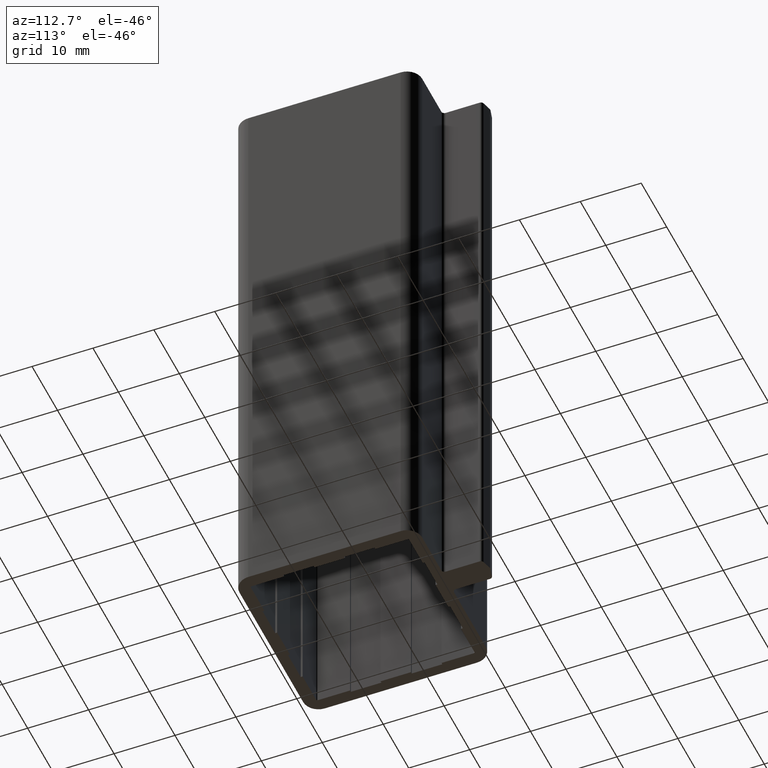
[diagram: clean part render]
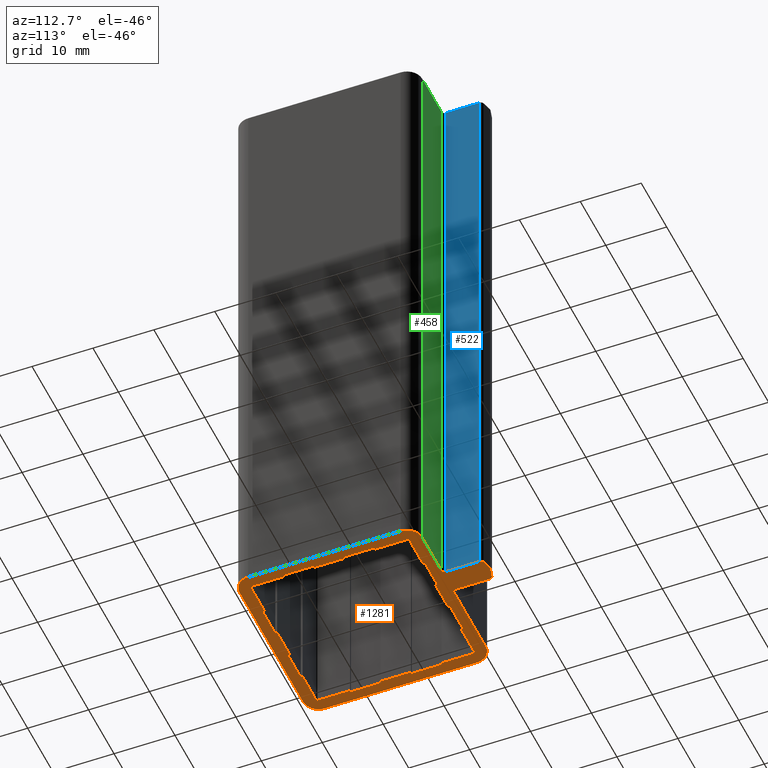
[diagram: same view with three faces highlighted in distinct colors, each labeled with its STEP entity id]
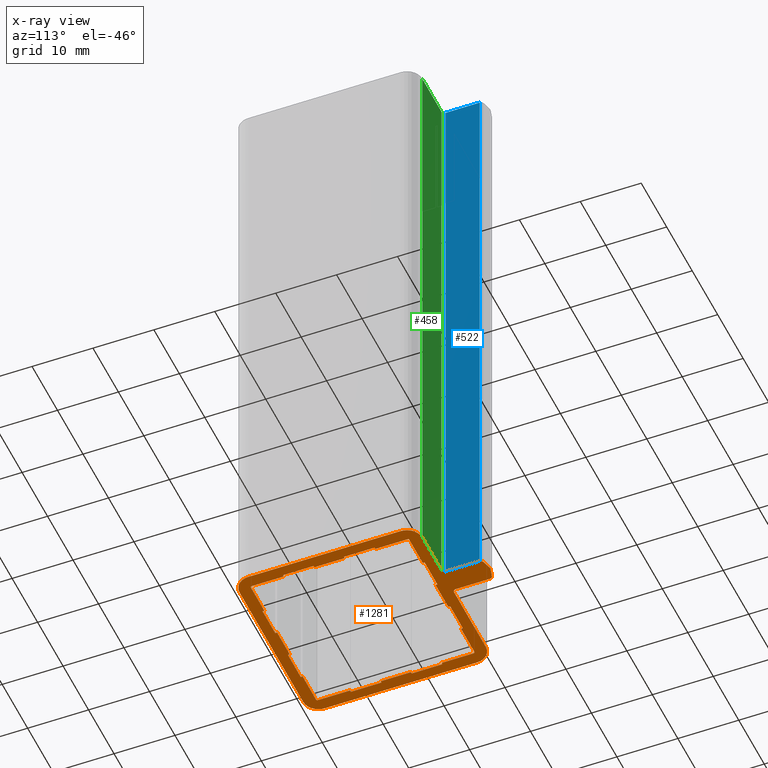
[diagram: x-ray of the same camera — body ghosted, the three highlighted faces saturated]
A machine part, auxiliary view with three faces highlighted in distinct colors.
The next image is the same camera in x-ray (body ghosted, the three faces saturated) — at least one of them is partly hidden behind the body in this view.
Their STEP definitions:

[orange] entity #1281 — the highlighted planar face has unit normal (0, 0, 1).
#9=CARTESIAN_POINT('',(2.629409522535866,36.982962913115216,0.0));
#10=VERTEX_POINT('',#9);
#17=CARTESIAN_POINT('',(2.370590477433552,36.982962913114761,0.0));
#18=VERTEX_POINT('',#17);
#19=CARTESIAN_POINT('',(2.499999999984766,36.499999999970669,0.0));
#20=DIRECTION('',(0.0,0.0,1.0));
#21=DIRECTION('',(1.0,0.0,0.0));
#22=AXIS2_PLACEMENT_3D('',#19,#20,#21);
#23=CIRCLE('',#22,0.500000000000000);
#24=EDGE_CURVE('',#10,#18,#23,.T.);
#50=CARTESIAN_POINT('',(0.870590477433666,36.581039124468361,0.0));
#51=VERTEX_POINT('',#50);
#52=CARTESIAN_POINT('',(2.370590477433552,36.982962913114761,0.0));
#53=DIRECTION('',(-0.965925826289004,-0.258819045102760,0.0));
#54=VECTOR('',#53,1.552914270615228);
#55=LINE('',#52,#54);
#56=EDGE_CURVE('',#18,#51,#55,.T.);
#81=CARTESIAN_POINT('',(0.499999999984766,36.098076211323814,0.0));
#82=VERTEX_POINT('',#81);
#83=CARTESIAN_POINT('',(0.999999999984766,36.098076211323814,0.0));
#84=DIRECTION('',(0.0,0.0,1.0));
#85=DIRECTION('',(1.0,0.0,0.0));
#86=AXIS2_PLACEMENT_3D('',#83,#84,#85);
#87=CIRCLE('',#86,0.500000000000000);
#88=EDGE_CURVE('',#51,#82,#87,.T.);
#114=CARTESIAN_POINT('',(0.499999999984766,30.499999999969759,0.0));
#115=VERTEX_POINT('',#114);
#116=CARTESIAN_POINT('',(0.499999999984766,36.098076211323814,0.0));
#117=DIRECTION('',(0.0,-1.0,0.0));
#118=VECTOR('',#117,5.598076211354055);
#119=LINE('',#116,#118);
#120=EDGE_CURVE('',#82,#115,#119,.T.);
#145=CARTESIAN_POINT('',(-1.523404E-011,29.999999999969759,0.0));
#146=VERTEX_POINT('',#145);
#147=CARTESIAN_POINT('',(-1.523404E-011,30.499999999969759,0.0));
#148=DIRECTION('',(0.0,0.0,-1.0));
#149=DIRECTION('',(1.0,0.0,0.0));
#150=AXIS2_PLACEMENT_3D('',#147,#148,#149);
#151=CIRCLE('',#150,0.500000000000000);
#152=EDGE_CURVE('',#115,#146,#151,.T.);
#178=CARTESIAN_POINT('',(-12.499999999987551,29.999999999969305,0.0));
#179=VERTEX_POINT('',#178);
#180=CARTESIAN_POINT('',(-1.523404E-011,29.999999999969759,0.0));
#181=DIRECTION('',(-1.0,0.0,0.0));
#182=VECTOR('',#181,12.499999999972317);
#183=LINE('',#180,#182);
#184=EDGE_CURVE('',#146,#179,#183,.T.);
#209=CARTESIAN_POINT('',(-14.999999999985164,27.499999999971806,0.0));
#210=VERTEX_POINT('',#209);
#211=CARTESIAN_POINT('',(-12.499999999987551,27.499999999971806,0.0));
#212=DIRECTION('',(0.0,0.0,1.0));
#213=DIRECTION('',(1.0,0.0,0.0));
#214=AXIS2_PLACEMENT_3D('',#211,#212,#213);
#215=CIRCLE('',#214,2.499999999997500);
#216=EDGE_CURVE('',#179,#210,#215,.T.);
#242=CARTESIAN_POINT('',(-14.999999999985050,2.499999999997499,0.0));
#243=VERTEX_POINT('',#242);
#244=CARTESIAN_POINT('',(-14.999999999985164,27.499999999971806,0.0));
#245=DIRECTION('',(0.0,-1.0,0.0));
#246=VECTOR('',#245,24.999999999974307);
#247=LINE('',#244,#246);
#248=EDGE_CURVE('',#210,#243,#247,.T.);
#273=CARTESIAN_POINT('',(-12.499999999987551,0.0,0.0));
#274=VERTEX_POINT('',#273);
#275=CARTESIAN_POINT('',(-12.499999999987551,2.499999999997499,0.0));
#276=DIRECTION('',(0.0,0.0,1.0));
#277=DIRECTION('',(1.0,0.0,0.0));
#278=AXIS2_PLACEMENT_3D('',#275,#276,#277);
#279=CIRCLE('',#278,2.499999999997500);
#280=EDGE_CURVE('',#243,#274,#279,.T.);
#306=CARTESIAN_POINT('',(12.499999999987551,0.0,0.0));
#307=VERTEX_POINT('',#306);
#308=CARTESIAN_POINT('',(-12.499999999987551,0.0,0.0));
#309=DIRECTION('',(1.0,0.0,0.0));
#310=VECTOR('',#309,24.999999999975103);
#311=LINE('',#308,#310);
#312=EDGE_CURVE('',#274,#307,#311,.T.);
#337=CARTESIAN_POINT('',(14.999999999984766,2.499999999997499,0.0));
#338=VERTEX_POINT('',#337);
#339=CARTESIAN_POINT('',(12.499999999987551,2.499999999997499,0.0));
#340=DIRECTION('',(0.0,0.0,1.0));
#341=DIRECTION('',(1.0,0.0,0.0));
#342=AXIS2_PLACEMENT_3D('',#339,#340,#341);
#343=CIRCLE('',#342,2.499999999997500);
#344=EDGE_CURVE('',#307,#338,#343,.T.);
#370=CARTESIAN_POINT('',(14.999999999985050,27.499999999971806,0.0));
#371=VERTEX_POINT('',#370);
#372=CARTESIAN_POINT('',(14.999999999984766,2.499999999997499,0.0));
#373=DIRECTION('',(0.0,1.0,0.0));
#374=VECTOR('',#373,24.999999999975330);
#375=LINE('',#372,#374);
#376=EDGE_CURVE('',#338,#371,#375,.T.);
#401=CARTESIAN_POINT('',(12.499999999987551,29.999999999969759,0.0));
#402=VERTEX_POINT('',#401);
#403=CARTESIAN_POINT('',(12.499999999987551,27.499999999971806,0.0));
#404=DIRECTION('',(0.0,0.0,1.0));
#405=DIRECTION('',(1.0,0.0,0.0));
#406=AXIS2_PLACEMENT_3D('',#403,#404,#405);
#407=CIRCLE('',#406,2.499999999997500);
#408=EDGE_CURVE('',#371,#402,#407,.T.);
#434=CARTESIAN_POINT('',(4.999999999984766,29.999999999969759,0.0));
#435=VERTEX_POINT('',#434);
#436=CARTESIAN_POINT('',(12.499999999987551,29.999999999969759,0.0));
#437=DIRECTION('',(-1.0,0.0,0.0));
#438=VECTOR('',#437,7.500000000002785);
#439=LINE('',#436,#438);
#440=EDGE_CURVE('',#402,#435,#439,.T.);
#465=CARTESIAN_POINT('',(4.499999999984766,30.499999999969759,0.0));
#466=VERTEX_POINT('',#465);
#467=CARTESIAN_POINT('',(4.999999999984766,30.499999999969759,0.0));
#468=DIRECTION('',(0.0,0.0,-1.0));
#469=DIRECTION('',(1.0,0.0,0.0));
#470=AXIS2_PLACEMENT_3D('',#467,#468,#469);
#471=CIRCLE('',#470,0.500000000000000);
#472=EDGE_CURVE('',#435,#466,#471,.T.);
#498=CARTESIAN_POINT('',(4.499999999984766,36.098076211323814,0.0));
#499=VERTEX_POINT('',#498);
#500=CARTESIAN_POINT('',(4.499999999984766,30.499999999969759,0.0));
#501=DIRECTION('',(0.0,1.0,0.0));
#502=VECTOR('',#501,5.598076211354055);
#503=LINE('',#500,#502);
#504=EDGE_CURVE('',#466,#499,#503,.T.);
#529=CARTESIAN_POINT('',(4.129409522535923,36.581039124467679,0.0));
#530=VERTEX_POINT('',#529);
#531=CARTESIAN_POINT('',(3.999999999984766,36.098076211323814,0.0));
#532=DIRECTION('',(0.0,0.0,1.0));
#533=DIRECTION('',(1.0,0.0,0.0));
#534=AXIS2_PLACEMENT_3D('',#531,#532,#533);
#535=CIRCLE('',#534,0.500000000000000);
#536=EDGE_CURVE('',#499,#530,#535,.T.);
#562=CARTESIAN_POINT('',(4.129409522535923,36.581039124467679,0.0));
#563=DIRECTION('',(-0.965925826288994,0.258819045102796,0.0));
#564=VECTOR('',#563,1.552914270615008);
#565=LINE('',#562,#564);
#566=EDGE_CURVE('',#530,#10,#565,.T.);
#930=CARTESIAN_POINT('',(-18.000120002707433,-3.700120002650692,0.0));
#931=DIRECTION('',(0.0,0.0,1.0));
#932=DIRECTION('',(1.0,0.0,0.0));
#933=AXIS2_PLACEMENT_3D('',#930,#931,#932);
#934=PLANE('',#933);
#935=ORIENTED_EDGE('',*,*,#566,.F.);
#936=ORIENTED_EDGE('',*,*,#536,.F.);
#937=ORIENTED_EDGE('',*,*,#504,.F.);
#938=ORIENTED_EDGE('',*,*,#472,.F.);
#939=ORIENTED_EDGE('',*,*,#440,.F.);
#940=ORIENTED_EDGE('',*,*,#408,.F.);
#941=ORIENTED_EDGE('',*,*,#376,.F.);
#942=ORIENTED_EDGE('',*,*,#344,.F.);
#943=ORIENTED_EDGE('',*,*,#312,.F.);
#944=ORIENTED_EDGE('',*,*,#280,.F.);
#945=ORIENTED_EDGE('',*,*,#248,.F.);
#946=ORIENTED_EDGE('',*,*,#216,.F.);
#947=ORIENTED_EDGE('',*,*,#184,.F.);
#948=ORIENTED_EDGE('',*,*,#152,.F.);
#949=ORIENTED_EDGE('',*,*,#120,.F.);
#950=ORIENTED_EDGE('',*,*,#88,.F.);
#951=ORIENTED_EDGE('',*,*,#56,.F.);
#952=ORIENTED_EDGE('',*,*,#24,.F.);
#953=EDGE_LOOP('',(#935,#936,#937,#938,#939,#940,#941,#942,#943,#944,#945,#946,#947,#948,#949,#950,#951,#952));
#954=FACE_OUTER_BOUND('',#953,.T.);
#955=CARTESIAN_POINT('',(-12.999999999999659,27.799999999984834,0.0));
#956=VERTEX_POINT('',#955);
#957=CARTESIAN_POINT('',(-12.999999999999886,22.499999999984766,0.0));
#958=VERTEX_POINT('',#957);
#959=CARTESIAN_POINT('',(-12.999999999999659,27.799999999984834,0.0));
#960=DIRECTION('',(0.0,-1.0,0.0));
#961=VECTOR('',#960,5.300000000000068);
#962=LINE('',#959,#961);
#963=EDGE_CURVE('',#956,#958,#962,.T.);
#964=ORIENTED_EDGE('',*,*,#963,.T.);
#965=CARTESIAN_POINT('',(-13.299999999999841,22.499999999984766,0.0));
#966=VERTEX_POINT('',#965);
#967=CARTESIAN_POINT('',(-12.999999999999886,22.499999999984766,0.0));
#968=DIRECTION('',(-1.0,0.0,0.0));
#969=VECTOR('',#968,0.299999999999955);
#970=LINE('',#967,#969);
#971=EDGE_CURVE('',#958,#966,#970,.T.);
#972=ORIENTED_EDGE('',*,*,#971,.T.);
#973=CARTESIAN_POINT('',(-13.299999999999955,17.499999999984766,0.0));
#974=VERTEX_POINT('',#973);
#975=CARTESIAN_POINT('',(-13.299999999999841,22.499999999984766,0.0));
#976=DIRECTION('',(0.0,-1.0,0.0));
#977=VECTOR('',#976,5.0);
#978=LINE('',#975,#977);
#979=EDGE_CURVE('',#966,#974,#978,.T.);
#980=ORIENTED_EDGE('',*,*,#979,.T.);
#981=CARTESIAN_POINT('',(-13.000000000000171,17.499999999984766,0.0));
#982=VERTEX_POINT('',#981);
#983=CARTESIAN_POINT('',(-13.299999999999955,17.499999999984766,0.0));
#984=DIRECTION('',(1.0,0.0,0.0));
#985=VECTOR('',#984,0.299999999999784);
#986=LINE('',#983,#985);
#987=EDGE_CURVE('',#974,#982,#986,.T.);
#988=ORIENTED_EDGE('',*,*,#987,.T.);
#989=CARTESIAN_POINT('',(-13.000000000000284,12.499999999984766,0.0));
#990=VERTEX_POINT('',#989);
#991=CARTESIAN_POINT('',(-13.000000000000171,17.499999999984766,0.0));
#992=DIRECTION('',(0.0,-1.0,0.0));
#993=VECTOR('',#992,5.0);
#994=LINE('',#991,#993);
#995=EDGE_CURVE('',#982,#990,#994,.T.);
#996=ORIENTED_EDGE('',*,*,#995,.T.);
#997=CARTESIAN_POINT('',(-13.300000000000352,12.499999999984766,0.0));
#998=VERTEX_POINT('',#997);
#999=CARTESIAN_POINT('',(-13.000000000000284,12.499999999984766,0.0));
#1000=DIRECTION('',(-1.0,0.0,0.0));
#1001=VECTOR('',#1000,0.300000000000068);
#1002=LINE('',#999,#1001);
#1003=EDGE_CURVE('',#990,#998,#1002,.T.);
#1004=ORIENTED_EDGE('',*,*,#1003,.T.);
#1005=CARTESIAN_POINT('',(-13.300000000000466,7.499999999984766,0.0));
#1006=VERTEX_POINT('',#1005);
#1007=CARTESIAN_POINT('',(-13.300000000000352,12.499999999984766,0.0));
#1008=DIRECTION('',(0.0,-1.0,0.0));
#1009=VECTOR('',#1008,5.0);
#1010=LINE('',#1007,#1009);
#1011=EDGE_CURVE('',#998,#1006,#1010,.T.);
#1012=ORIENTED_EDGE('',*,*,#1011,.T.);
#1013=CARTESIAN_POINT('',(-13.000000000000568,7.499999999984766,0.0));
#1014=VERTEX_POINT('',#1013);
#1015=CARTESIAN_POINT('',(-13.300000000000466,7.499999999984766,0.0));
#1016=DIRECTION('',(1.0,0.0,0.0));
#1017=VECTOR('',#1016,0.299999999999898);
#1018=LINE('',#1015,#1017);
#1019=EDGE_CURVE('',#1006,#1014,#1018,.T.);
#1020=ORIENTED_EDGE('',*,*,#1019,.T.);
#1021=CARTESIAN_POINT('',(-13.000000000000853,2.199999999984357,0.0));
#1022=VERTEX_POINT('',#1021);
#1023=CARTESIAN_POINT('',(-13.000000000000568,7.499999999984766,0.0));
#1024=DIRECTION('',(0.0,-1.0,0.0));
#1025=VECTOR('',#1024,5.300000000000409);
#1026=LINE('',#1023,#1025);
#1027=EDGE_CURVE('',#1014,#1022,#1026,.T.);
#1028=ORIENTED_EDGE('',*,*,#1027,.T.);
#1029=CARTESIAN_POINT('',(-12.800000000000864,1.999999999984425,0.0));
#1030=VERTEX_POINT('',#1029);
#1031=CARTESIAN_POINT('',(-12.800000000000864,2.199999999984357,0.0));
#1032=DIRECTION('',(0.0,0.0,-1.0));
#1033=DIRECTION('',(1.0,0.0,0.0));
#1034=AXIS2_PLACEMENT_3D('',#1031,#1032,#1033);
#1035=CIRCLE('',#1034,0.200000000000000);
#1036=EDGE_CURVE('',#1030,#1022,#1035,.T.);
#1037=ORIENTED_EDGE('',*,*,#1036,.F.);
#1038=CARTESIAN_POINT('',(-7.500000000000171,1.999999999984425,0.0));
#1039=VERTEX_POINT('',#1038);
#1040=CARTESIAN_POINT('',(-12.800000000000864,1.999999999984425,0.0));
#1041=DIRECTION('',(1.0,0.0,0.0));
#1042=VECTOR('',#1041,5.300000000000694);
#1043=LINE('',#1040,#1042);
#1044=EDGE_CURVE('',#1030,#1039,#1043,.T.);
#1045=ORIENTED_EDGE('',*,*,#1044,.T.);
#1046=CARTESIAN_POINT('',(-7.500000000000171,1.699999999984243,0.0));
#1047=VERTEX_POINT('',#1046);
#1048=CARTESIAN_POINT('',(-7.500000000000171,1.999999999984425,0.0));
#1049=DIRECTION('',(0.0,-1.0,0.0));
#1050=VECTOR('',#1049,0.300000000000182);
#1051=LINE('',#1048,#1050);
#1052=EDGE_CURVE('',#1039,#1047,#1051,.T.);
#1053=ORIENTED_EDGE('',*,*,#1052,.T.);
#1054=CARTESIAN_POINT('',(-2.500000000000284,1.699999999984243,0.0));
#1055=VERTEX_POINT('',#1054);
#1056=CARTESIAN_POINT('',(-7.500000000000171,1.699999999984243,0.0));
#1057=DIRECTION('',(1.0,0.0,0.0));
#1058=VECTOR('',#1057,4.999999999999886);
#1059=LINE('',#1056,#1058);
#1060=EDGE_CURVE('',#1047,#1055,#1059,.T.);
#1061=ORIENTED_EDGE('',*,*,#1060,.T.);
#1062=CARTESIAN_POINT('',(-2.500000000000284,1.999999999984425,0.0));
#1063=VERTEX_POINT('',#1062);
#1064=CARTESIAN_POINT('',(-2.500000000000284,1.699999999984243,0.0));
#1065=DIRECTION('',(0.0,1.0,0.0));
#1066=VECTOR('',#1065,0.300000000000182);
#1067=LINE('',#1064,#1066);
#1068=EDGE_CURVE('',#1055,#1063,#1067,.T.);
#1069=ORIENTED_EDGE('',*,*,#1068,.T.);
#1070=CARTESIAN_POINT('',(2.499999999999716,1.999999999984425,0.0));
#1071=VERTEX_POINT('',#1070);
#1072=CARTESIAN_POINT('',(-2.500000000000284,1.999999999984425,0.0));
#1073=DIRECTION('',(1.0,0.0,0.0));
#1074=VECTOR('',#1073,5.0);
#1075=LINE('',#1072,#1074);
#1076=EDGE_CURVE('',#1063,#1071,#1075,.T.);
#1077=ORIENTED_EDGE('',*,*,#1076,.T.);
#1078=CARTESIAN_POINT('',(2.499999999999716,1.699999999984243,0.0));
#1079=VERTEX_POINT('',#1078);
#1080=CARTESIAN_POINT('',(2.499999999999716,1.999999999984425,0.0));
#1081=DIRECTION('',(0.0,-1.0,0.0));
#1082=VECTOR('',#1081,0.300000000000182);
#1083=LINE('',#1080,#1082);
#1084=EDGE_CURVE('',#1071,#1079,#1083,.T.);
#1085=ORIENTED_EDGE('',*,*,#1084,.T.);
#1086=CARTESIAN_POINT('',(7.499999999999830,1.699999999984243,0.0));
#1087=VERTEX_POINT('',#1086);
#1088=CARTESIAN_POINT('',(2.499999999999716,1.699999999984243,0.0));
#1089=DIRECTION('',(1.0,0.0,0.0));
#1090=VECTOR('',#1089,5.000000000000114);
#1091=LINE('',#1088,#1090);
#1092=EDGE_CURVE('',#1079,#1087,#1091,.T.);
#1093=ORIENTED_EDGE('',*,*,#1092,.T.);
#1094=CARTESIAN_POINT('',(7.499999999999830,1.999999999984425,0.0));
#1095=VERTEX_POINT('',#1094);
#1096=CARTESIAN_POINT('',(7.499999999999830,1.699999999984243,0.0));
#1097=DIRECTION('',(0.0,1.0,0.0));
#1098=VECTOR('',#1097,0.300000000000182);
#1099=LINE('',#1096,#1098);
#1100=EDGE_CURVE('',#1087,#1095,#1099,.T.);
#1101=ORIENTED_EDGE('',*,*,#1100,.T.);
#1102=CARTESIAN_POINT('',(12.800000000000466,1.999999999984311,0.0));
#1103=VERTEX_POINT('',#1102);
#1104=CARTESIAN_POINT('',(7.499999999999830,1.999999999984425,0.0));
#1105=DIRECTION('',(1.0,0.0,0.0));
#1106=VECTOR('',#1105,5.300000000000637);
#1107=LINE('',#1104,#1106);
#1108=EDGE_CURVE('',#1095,#1103,#1107,.T.);
#1109=ORIENTED_EDGE('',*,*,#1108,.T.);
#1110=CARTESIAN_POINT('',(13.000000000000739,2.199999999984357,0.0));
#1111=VERTEX_POINT('',#1110);
#1112=CARTESIAN_POINT('',(12.800000000000466,2.199999999984357,0.0));
#1113=DIRECTION('',(0.0,0.0,-1.0));
#1114=DIRECTION('',(1.0,0.0,0.0));
#1115=AXIS2_PLACEMENT_3D('',#1112,#1113,#1114);
#1116=CIRCLE('',#1115,0.200000000000000);
#1117=EDGE_CURVE('',#1111,#1103,#1116,.T.);
#1118=ORIENTED_EDGE('',*,*,#1117,.F.);
#1119=CARTESIAN_POINT('',(13.000000000000227,7.499999999984766,0.0));
#1120=VERTEX_POINT('',#1119);
#1121=CARTESIAN_POINT('',(13.000000000000739,2.199999999984357,0.0));
#1122=DIRECTION('',(0.0,1.0,0.0));
#1123=VECTOR('',#1122,5.300000000000409);
#1124=LINE('',#1121,#1123);
#1125=EDGE_CURVE('',#1111,#1120,#1124,.T.);
#1126=ORIENTED_EDGE('',*,*,#1125,.T.);
#1127=CARTESIAN_POINT('',(13.300000000000466,7.499999999984766,0.0));
#1128=VERTEX_POINT('',#1127);
#1129=CARTESIAN_POINT('',(13.000000000000227,7.499999999984766,0.0));
#1130=DIRECTION('',(1.0,0.0,0.0));
#1131=VECTOR('',#1130,0.300000000000239);
#1132=LINE('',#1129,#1131);
#1133=EDGE_CURVE('',#1120,#1128,#1132,.T.);
#1134=ORIENTED_EDGE('',*,*,#1133,.T.);
#1135=CARTESIAN_POINT('',(13.299999999999955,12.499999999984766,0.0));
#1136=VERTEX_POINT('',#1135);
#1137=CARTESIAN_POINT('',(13.300000000000466,7.499999999984766,0.0));
#1138=DIRECTION('',(-1.023182E-013,1.0,0.0));
#1139=VECTOR('',#1138,5.0);
#1140=LINE('',#1137,#1139);
#1141=EDGE_CURVE('',#1128,#1136,#1140,.T.);
#1142=ORIENTED_EDGE('',*,*,#1141,.T.);
#1143=CARTESIAN_POINT('',(12.999999999999716,12.499999999984766,0.0));
#1144=VERTEX_POINT('',#1143);
#1145=CARTESIAN_POINT('',(13.299999999999955,12.499999999984766,0.0));
#1146=DIRECTION('',(-1.0,0.0,0.0));
#1147=VECTOR('',#1146,0.300000000000239);
#1148=LINE('',#1145,#1147);
#1149=EDGE_CURVE('',#1136,#1144,#1148,.T.);
#1150=ORIENTED_EDGE('',*,*,#1149,.T.);
#1151=CARTESIAN_POINT('',(12.999999999999716,17.499999999984766,0.0));
#1152=VERTEX_POINT('',#1151);
#1153=CARTESIAN_POINT('',(12.999999999999716,12.499999999984766,0.0));
#1154=DIRECTION('',(0.0,1.0,0.0));
#1155=VECTOR('',#1154,5.0);
#1156=LINE('',#1153,#1155);
#1157=EDGE_CURVE('',#1144,#1152,#1156,.T.);
#1158=ORIENTED_EDGE('',*,*,#1157,.T.);
#1159=CARTESIAN_POINT('',(13.299999999999955,17.499999999984766,0.0));
#1160=VERTEX_POINT('',#1159);
#1161=CARTESIAN_POINT('',(12.999999999999716,17.499999999984766,0.0));
#1162=DIRECTION('',(1.0,0.0,0.0));
#1163=VECTOR('',#1162,0.300000000000239);
#1164=LINE('',#1161,#1163);
#1165=EDGE_CURVE('',#1152,#1160,#1164,.T.);
#1166=ORIENTED_EDGE('',*,*,#1165,.T.);
#1167=CARTESIAN_POINT('',(13.299999999999557,22.499999999984766,0.0));
#1168=VERTEX_POINT('',#1167);
#1169=CARTESIAN_POINT('',(13.299999999999955,17.499999999984766,0.0));
#1170=DIRECTION('',(0.0,1.0,0.0));
#1171=VECTOR('',#1170,5.0);
#1172=LINE('',#1169,#1171);
#1173=EDGE_CURVE('',#1160,#1168,#1172,.T.);
#1174=ORIENTED_EDGE('',*,*,#1173,.T.);
#1175=CARTESIAN_POINT('',(12.999999999999318,22.499999999984766,0.0));
#1176=VERTEX_POINT('',#1175);
#1177=CARTESIAN_POINT('',(13.299999999999557,22.499999999984766,0.0));
#1178=DIRECTION('',(-1.0,0.0,0.0));
#1179=VECTOR('',#1178,0.300000000000239);
#1180=LINE('',#1177,#1179);
#1181=EDGE_CURVE('',#1168,#1176,#1180,.T.);
#1182=ORIENTED_EDGE('',*,*,#1181,.T.);
#1183=CARTESIAN_POINT('',(12.999999999999034,27.799999999984834,0.0));
#1184=VERTEX_POINT('',#1183);
#1185=CARTESIAN_POINT('',(12.999999999999318,22.499999999984766,0.0));
#1186=DIRECTION('',(0.0,1.0,0.0));
#1187=VECTOR('',#1186,5.300000000000068);
#1188=LINE('',#1185,#1187);
#1189=EDGE_CURVE('',#1176,#1184,#1188,.T.);
#1190=ORIENTED_EDGE('',*,*,#1189,.T.);
#1191=CARTESIAN_POINT('',(12.799999999999045,27.999999999984766,0.0));
#1192=VERTEX_POINT('',#1191);
#1193=CARTESIAN_POINT('',(12.799999999999045,27.799999999984834,0.0));
#1194=DIRECTION('',(0.0,0.0,-1.0));
#1195=DIRECTION('',(1.0,0.0,0.0));
#1196=AXIS2_PLACEMENT_3D('',#1193,#1194,#1195);
#1197=CIRCLE('',#1196,0.200000000000000);
#1198=EDGE_CURVE('',#1192,#1184,#1197,.T.);
#1199=ORIENTED_EDGE('',*,*,#1198,.F.);
#1200=CARTESIAN_POINT('',(7.499999999999830,27.999999999984766,0.0));
#1201=VERTEX_POINT('',#1200);
#1202=CARTESIAN_POINT('',(12.799999999999045,27.999999999984766,0.0));
#1203=DIRECTION('',(-1.0,0.0,0.0));
#1204=VECTOR('',#1203,5.299999999999216);
#1205=LINE('',#1202,#1204);
#1206=EDGE_CURVE('',#1192,#1201,#1205,.T.);
#1207=ORIENTED_EDGE('',*,*,#1206,.T.);
#1208=CARTESIAN_POINT('',(7.499999999999830,28.299999999984834,0.0));
#1209=VERTEX_POINT('',#1208);
#1210=CARTESIAN_POINT('',(7.499999999999830,27.999999999984766,0.0));
#1211=DIRECTION('',(0.0,1.0,0.0));
#1212=VECTOR('',#1211,0.300000000000068);
#1213=LINE('',#1210,#1212);
#1214=EDGE_CURVE('',#1201,#1209,#1213,.T.);
#1215=ORIENTED_EDGE('',*,*,#1214,.T.);
#1216=CARTESIAN_POINT('',(2.499999999999716,28.299999999984834,0.0));
#1217=VERTEX_POINT('',#1216);
#1218=CARTESIAN_POINT('',(7.499999999999830,28.299999999984834,0.0));
#1219=DIRECTION('',(-1.0,0.0,0.0));
#1220=VECTOR('',#1219,5.000000000000114);
#1221=LINE('',#1218,#1220);
#1222=EDGE_CURVE('',#1209,#1217,#1221,.T.);
#1223=ORIENTED_EDGE('',*,*,#1222,.T.);
#1224=CARTESIAN_POINT('',(2.499999999999716,27.999999999984766,0.0));
#1225=VERTEX_POINT('',#1224);
#1226=CARTESIAN_POINT('',(2.499999999999716,28.299999999984834,0.0));
#1227=DIRECTION('',(0.0,-1.0,0.0));
#1228=VECTOR('',#1227,0.300000000000068);
#1229=LINE('',#1226,#1228);
#1230=EDGE_CURVE('',#1217,#1225,#1229,.T.);
#1231=ORIENTED_EDGE('',*,*,#1230,.T.);
#1232=CARTESIAN_POINT('',(-2.500000000000284,27.999999999984766,0.0));
#1233=VERTEX_POINT('',#1232);
#1234=CARTESIAN_POINT('',(2.499999999999716,27.999999999984766,0.0));
#1235=DIRECTION('',(-1.0,0.0,0.0));
#1236=VECTOR('',#1235,5.0);
#1237=LINE('',#1234,#1236);
#1238=EDGE_CURVE('',#1225,#1233,#1237,.T.);
#1239=ORIENTED_EDGE('',*,*,#1238,.T.);
#1240=CARTESIAN_POINT('',(-2.500000000000284,28.299999999984834,0.0));
#1241=VERTEX_POINT('',#1240);
#1242=CARTESIAN_POINT('',(-2.500000000000284,27.999999999984766,0.0));
#1243=DIRECTION('',(0.0,1.0,0.0));
#1244=VECTOR('',#1243,0.300000000000068);
#1245=LINE('',#1242,#1244);
#1246=EDGE_CURVE('',#1233,#1241,#1245,.T.);
#1247=ORIENTED_EDGE('',*,*,#1246,.T.);
#1248=CARTESIAN_POINT('',(-7.500000000000171,28.299999999984834,0.0));
#1249=VERTEX_POINT('',#1248);
#1250=CARTESIAN_POINT('',(-2.500000000000284,28.299999999984834,0.0));
#1251=DIRECTION('',(-1.0,0.0,0.0));
#1252=VECTOR('',#1251,4.999999999999886);
#1253=LINE('',#1250,#1252);
#1254=EDGE_CURVE('',#1241,#1249,#1253,.T.);
#1255=ORIENTED_EDGE('',*,*,#1254,.T.);
#1256=CARTESIAN_POINT('',(-7.500000000000171,27.999999999984766,0.0));
#1257=VERTEX_POINT('',#1256);
#1258=CARTESIAN_POINT('',(-7.500000000000171,28.299999999984834,0.0));
#1259=DIRECTION('',(0.0,-1.0,0.0));
#1260=VECTOR('',#1259,0.300000000000068);
#1261=LINE('',#1258,#1260);
#1262=EDGE_CURVE('',#1249,#1257,#1261,.T.);
#1263=ORIENTED_EDGE('',*,*,#1262,.T.);
#1264=CARTESIAN_POINT('',(-12.799999999999557,27.999999999984880,0.0));
#1265=VERTEX_POINT('',#1264);
#1266=CARTESIAN_POINT('',(-12.799999999999557,27.999999999984880,0.0));
#1267=DIRECTION('',(1.0,0.0,0.0));
#1268=VECTOR('',#1267,5.299999999999386);
#1269=LINE('',#1266,#1268);
#1270=EDGE_CURVE('',#1265,#1257,#1269,.T.);
#1271=ORIENTED_EDGE('',*,*,#1270,.F.);
#1272=CARTESIAN_POINT('',(-12.799999999999557,27.799999999984834,0.0));
#1273=DIRECTION('',(0.0,0.0,-1.0));
#1274=DIRECTION('',(1.0,0.0,0.0));
#1275=AXIS2_PLACEMENT_3D('',#1272,#1273,#1274);
#1276=CIRCLE('',#1275,0.200000000000000);
#1277=EDGE_CURVE('',#956,#1265,#1276,.T.);
#1278=ORIENTED_EDGE('',*,*,#1277,.F.);
#1279=EDGE_LOOP('',(#964,#972,#980,#988,#996,#1004,#1012,#1020,#1028,#1037,#1045,#1053,#1061,#1069,#1077,#1085,#1093,#1101,#1109,#1118,#1126,#1134,#1142,#1150,#1158,#1166,#1174,#1182,#1190,#1199,#1207,#1215,#1223,#1231,#1239,#1247,#1255,#1263,#1271,#1278));
#1280=FACE_BOUND('',#1279,.T.);
#1281=ADVANCED_FACE('',(#954,#1280),#934,.F.);

[blue] entity #522 — the highlighted planar face has unit normal (-1, 0, 0).
#465=CARTESIAN_POINT('',(4.499999999984766,30.499999999969759,0.0));
#466=VERTEX_POINT('',#465);
#474=CARTESIAN_POINT('',(4.499999999984766,30.499999999969759,100.0));
#475=VERTEX_POINT('',#474);
#476=CARTESIAN_POINT('',(4.499999999984766,30.499999999969759,100.0));
#477=DIRECTION('',(0.0,0.0,-1.0));
#478=VECTOR('',#477,100.0);
#479=LINE('',#476,#478);
#480=EDGE_CURVE('',#475,#466,#479,.T.);
#492=CARTESIAN_POINT('',(4.499999999984766,30.499999999969759,100.0));
#493=DIRECTION('',(-1.0,0.0,0.0));
#494=DIRECTION('',(0.0,1.0,0.0));
#495=AXIS2_PLACEMENT_3D('',#492,#493,#494);
#496=PLANE('',#495);
#497=ORIENTED_EDGE('',*,*,#480,.T.);
#498=CARTESIAN_POINT('',(4.499999999984766,36.098076211323814,0.0));
#499=VERTEX_POINT('',#498);
#500=CARTESIAN_POINT('',(4.499999999984766,30.499999999969759,0.0));
#501=DIRECTION('',(0.0,1.0,0.0));
#502=VECTOR('',#501,5.598076211354055);
#503=LINE('',#500,#502);
#504=EDGE_CURVE('',#466,#499,#503,.T.);
#505=ORIENTED_EDGE('',*,*,#504,.T.);
#506=CARTESIAN_POINT('',(4.499999999984766,36.098076211323814,100.0));
#507=VERTEX_POINT('',#506);
#508=CARTESIAN_POINT('',(4.499999999984766,36.098076211323814,100.0));
#509=DIRECTION('',(0.0,0.0,-1.0));
#510=VECTOR('',#509,100.0);
#511=LINE('',#508,#510);
#512=EDGE_CURVE('',#507,#499,#511,.T.);
#513=ORIENTED_EDGE('',*,*,#512,.F.);
#514=CARTESIAN_POINT('',(4.499999999984766,30.499999999969759,100.0));
#515=DIRECTION('',(0.0,1.0,0.0));
#516=VECTOR('',#515,5.598076211354055);
#517=LINE('',#514,#516);
#518=EDGE_CURVE('',#475,#507,#517,.T.);
#519=ORIENTED_EDGE('',*,*,#518,.F.);
#520=EDGE_LOOP('',(#497,#505,#513,#519));
#521=FACE_OUTER_BOUND('',#520,.T.);
#522=ADVANCED_FACE('',(#521),#496,.F.);

[green] entity #458 — the highlighted planar face has unit normal (0, -1, 0).
#401=CARTESIAN_POINT('',(12.499999999987551,29.999999999969759,0.0));
#402=VERTEX_POINT('',#401);
#410=CARTESIAN_POINT('',(12.499999999987551,29.999999999969759,100.0));
#411=VERTEX_POINT('',#410);
#412=CARTESIAN_POINT('',(12.499999999987551,29.999999999969759,100.0));
#413=DIRECTION('',(0.0,0.0,-1.0));
#414=VECTOR('',#413,100.0);
#415=LINE('',#412,#414);
#416=EDGE_CURVE('',#411,#402,#415,.T.);
#428=CARTESIAN_POINT('',(12.499999999987551,29.999999999969759,100.0));
#429=DIRECTION('',(0.0,-1.0,0.0));
#430=DIRECTION('',(-1.0,0.0,0.0));
#431=AXIS2_PLACEMENT_3D('',#428,#429,#430);
#432=PLANE('',#431);
#433=ORIENTED_EDGE('',*,*,#416,.T.);
#434=CARTESIAN_POINT('',(4.999999999984766,29.999999999969759,0.0));
#435=VERTEX_POINT('',#434);
#436=CARTESIAN_POINT('',(12.499999999987551,29.999999999969759,0.0));
#437=DIRECTION('',(-1.0,0.0,0.0));
#438=VECTOR('',#437,7.500000000002785);
#439=LINE('',#436,#438);
#440=EDGE_CURVE('',#402,#435,#439,.T.);
#441=ORIENTED_EDGE('',*,*,#440,.T.);
#442=CARTESIAN_POINT('',(4.999999999984766,29.999999999969759,100.0));
#443=VERTEX_POINT('',#442);
#444=CARTESIAN_POINT('',(4.999999999984766,29.999999999969759,100.0));
#445=DIRECTION('',(0.0,0.0,-1.0));
#446=VECTOR('',#445,100.0);
#447=LINE('',#444,#446);
#448=EDGE_CURVE('',#443,#435,#447,.T.);
#449=ORIENTED_EDGE('',*,*,#448,.F.);
#450=CARTESIAN_POINT('',(12.499999999987551,29.999999999969759,100.0));
#451=DIRECTION('',(-1.0,0.0,0.0));
#452=VECTOR('',#451,7.500000000002785);
#453=LINE('',#450,#452);
#454=EDGE_CURVE('',#411,#443,#453,.T.);
#455=ORIENTED_EDGE('',*,*,#454,.F.);
#456=EDGE_LOOP('',(#433,#441,#449,#455));
#457=FACE_OUTER_BOUND('',#456,.T.);
#458=ADVANCED_FACE('',(#457),#432,.F.);